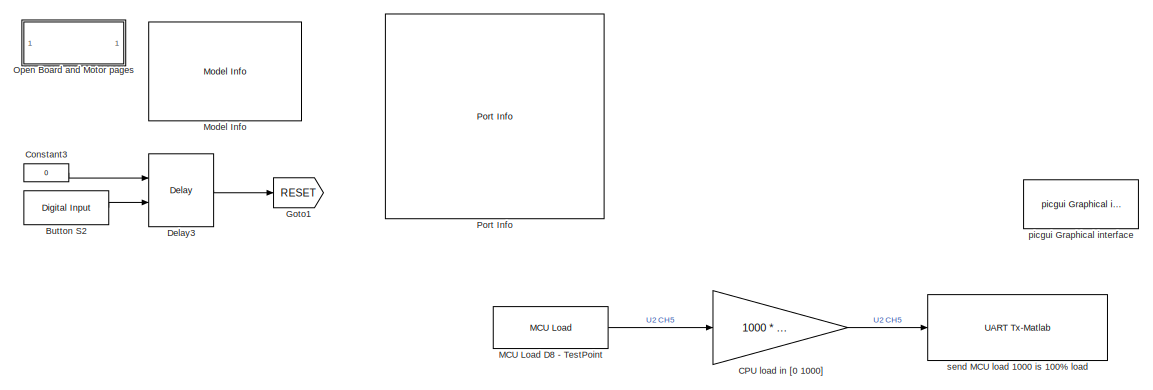
[diagram: root canvas - part 1/3, top right region]
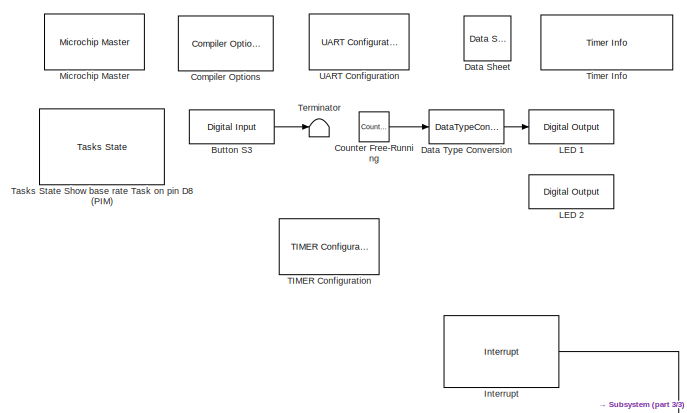
[diagram: root canvas - part 2/3, top left region]
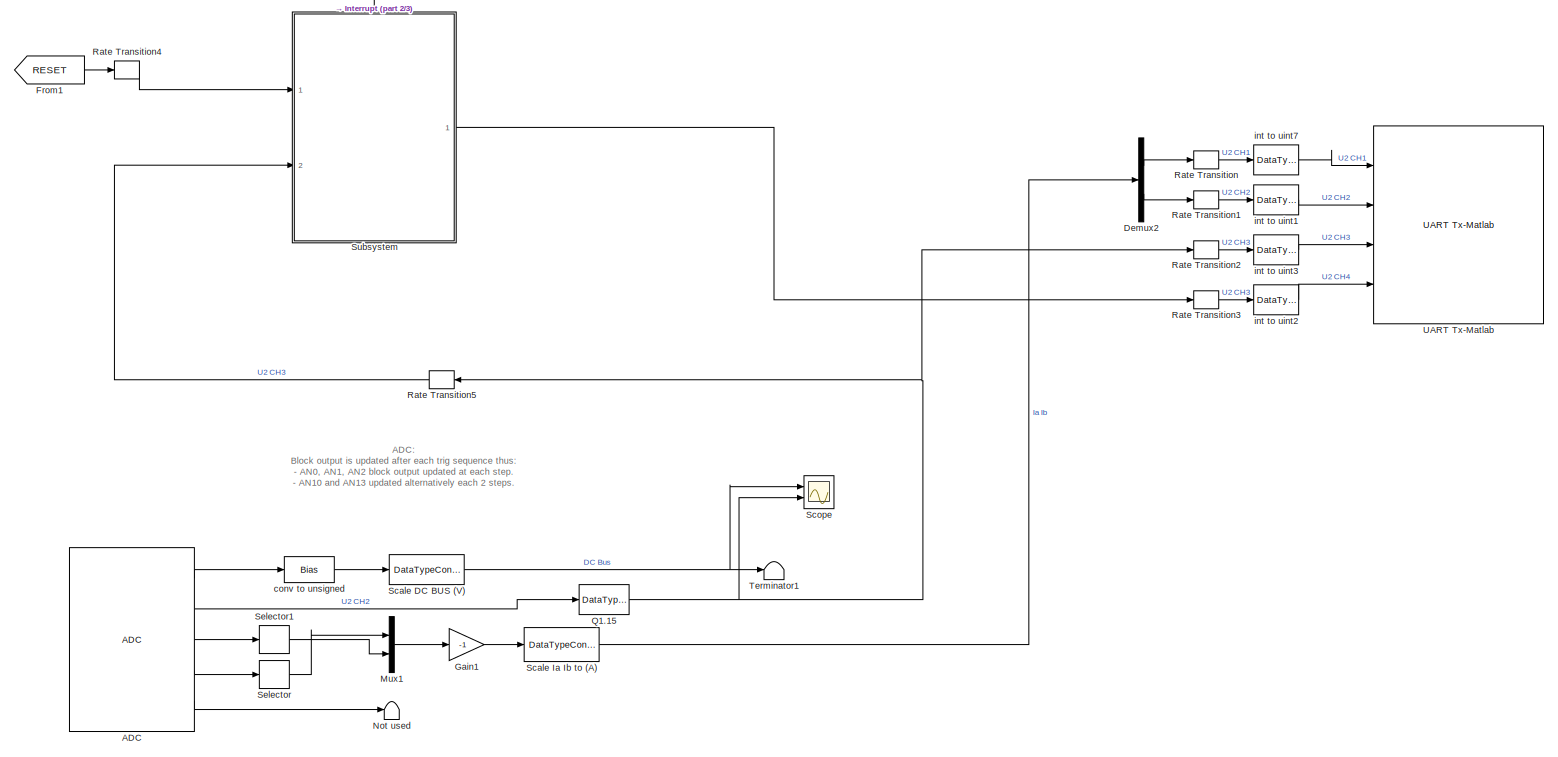
[diagram: root canvas - part 3/3, full width, bottom band]
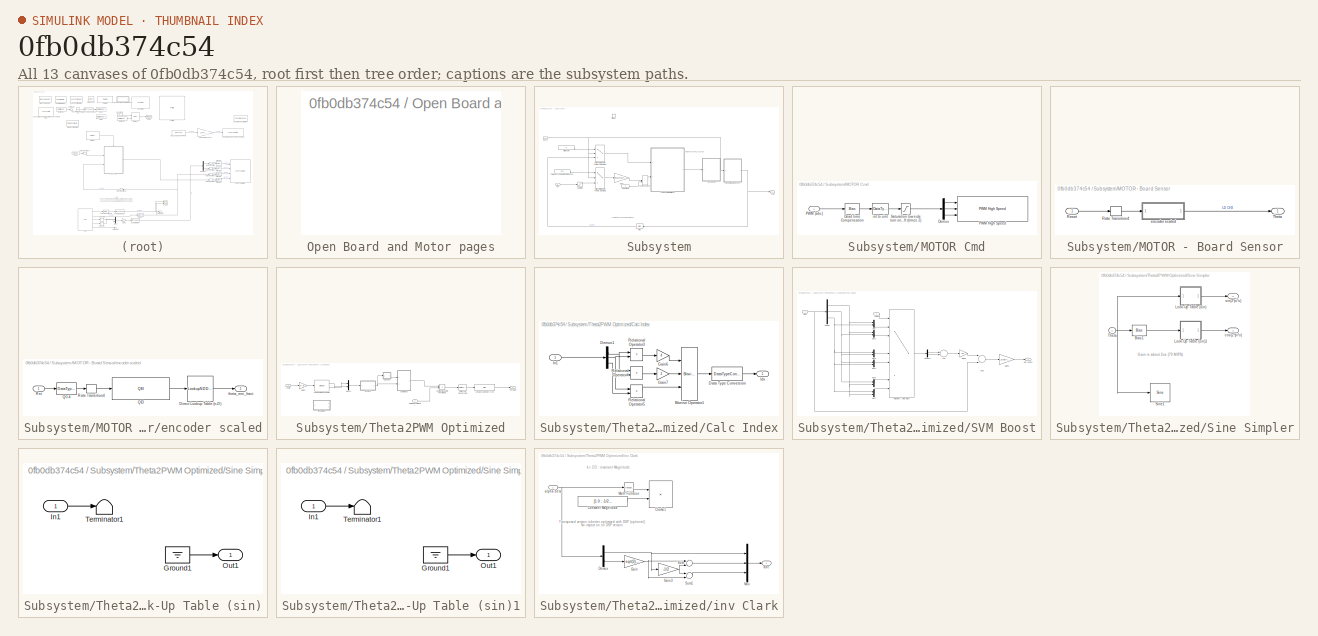
[diagram: thumbnail index - all 13 canvases of the model, root first then tree order]
MODEL slx_0fb0db374c54
KIND model
CONFIG AbsTol = auto
CONFIG EnableMultiTasking = on
CONFIG FixedStep = .01
CONFIG MaxStep = auto
CONFIG MinStep = auto
CONFIG RelTol = 1e-3
CONFIG SampleTimeConstraint = Unconstrained
CONFIG Solver = FixedStepDiscrete
CONFIG SolverName = FixedStepDiscrete
CONFIG StartTime = 0.0
CONFIG StopTime = inf
BLOCK [Reference] ADC  REF=MCHP_Blockset/Analog IO/ADC
  Ports = [0, 5]
  Priority = 5
  SourceBlock = MCHP_Blockset/Analog IO/ADC
  SourceProductName = MPLAB Device Blocks for Simulink
BLOCK [Reference] Button S2  REF=MCHP_Blockset/Digital IO/Digital Input
  Ports = [0, 1]
  SourceBlock = MCHP_Blockset/Digital IO/Digital Input
  SourceProductName = MPLAB Device Blocks for Simulink
  SourceType = Input driver for Digital Input Pins
BLOCK [Reference] Button S3  REF=MCHP_Blockset/Digital IO/Digital Input
  Ports = [0, 1]
  SourceBlock = MCHP_Blockset/Digital IO/Digital Input
  SourceProductName = MPLAB Device Blocks for Simulink
  SourceType = Input driver for Digital Input Pins
BLOCK [Gain] CPU load in [0 1000]
  Gain = 1000 * (914.3e-9 / .01 )
  OutDataTypeStr = uint16
  ParamDataTypeStr = Inherit: Inherit via internal rule
  SaturateOnIntegerOverflow = off
BLOCK [Reference] Compiler Options  REF=MCHP_Blockset/System Configuration/Compiler Options
  Ports = []
  Priority = 1
  SourceBlock = MCHP_Blockset/System Configuration/Compiler Options
  SourceProductName = MPLAB Device Blocks for Simulink
BLOCK [Constant] Constant3
  OutDataTypeStr = uint16
  SampleTime = -1
  Value = 0
BLOCK [Reference] Counter Free-Running  REF=simulink/Sources/Counter
Free-Running
  Ports = [0, 1]
  SourceBlock = simulink/Sources/Counter\nFree-Running
  SourceProductBaseCode = SL
  SourceProductName = Simulink
  SourceType = Counter Free-Running
BLOCK [Reference] Data Sheet  REF=MCHP_Blockset/System Info/Data Sheet
  AttributesFormatString = %<cpy_MCHP_Id>
  Ports = []
  SourceBlock = MCHP_Blockset/System Info/Data Sheet
  SourceProductName = MPLAB Device Blocks for Simulink
BLOCK [DataTypeConversion] Data Type Conversion
  OutDataTypeStr = boolean
  RndMeth = Floor
  SaturateOnIntegerOverflow = off
BLOCK [Delay] Delay3
  DelayLength = 1
  ExternalReset = Falling
  InitialCondition = 1
  InputPortMap = u0,r5
  Ports = [2, 1]
  SampleTime = .1
BLOCK [Demux] Demux2
  DisplayOption = bar
  Outputs = 2
  Ports = [1, 2]
BLOCK [From] From1
  GotoTag = RESET
  TagVisibility = global
BLOCK [Gain] Gain1
  Gain = -1
  ParamDataTypeStr = Inherit: Inherit via internal rule
BLOCK [Goto] Goto1
  GotoTag = RESET
  TagVisibility = global
BLOCK [Reference] Interrupt  REF=MCHP_Blockset/System Functions/Interrupt
  Ports = [0, 1]
  SourceBlock = MCHP_Blockset/System Functions/Interrupt
  SourceProductName = MPLAB Device Blocks for Simulink
  SourceType = Interruption (Call Simulink Subfunction)
BLOCK [Reference] LED 1  REF=MCHP_Blockset/Digital IO/Digital Output
  Ports = [1]
  SourceBlock = MCHP_Blockset/Digital IO/Digital Output
  SourceProductName = MPLAB Device Blocks for Simulink
BLOCK [Reference] LED 2  REF=MCHP_Blockset/Digital IO/Digital Output
  Commented = on
  Ports = [1]
  SourceBlock = MCHP_Blockset/Digital IO/Digital Output
  SourceProductName = MPLAB Device Blocks for Simulink
BLOCK [Reference] MCU Load D8 - TestPoint  REF=MCHP_Blockset/Profiling/MCU Load
  Ports = [0, 1]
  SourceBlock = MCHP_Blockset/Profiling/MCU Load
  SourceProductName = MPLAB Device Blocks for Simulink
  SourceType = MCU Load (Profile execution time)
BLOCK [Reference] Microchip Master  REF=MCHP_Blockset/System Configuration/Microchip Master
  Ports = []
  Priority = 1
  SourceBlock = MCHP_Blockset/System Configuration/Microchip Master
  SourceProductName = MPLAB Device Blocks for Simulink
BLOCK [Reference] Model Info  REF=simulink/Model-Wide
Utilities/Model Info
  Ports = []
  SourceBlock = simulink/Model-Wide\nUtilities/Model Info
  SourceProductBaseCode = SL
  SourceProductName = Simulink
  SourceType = CMBlock
BLOCK [Mux] Mux1
  DisplayOption = bar
  Inputs = 2
  Ports = [2, 1]
BLOCK [Terminator] Not used
BLOCK [SubSystem] Open Board and Motor pages
  OpenFcn = web('www.microchip.com/DevelopmentTools/ProductDetails.aspx?PartNO=DM330021-2','-browser');\npause(1);\nweb('http://www.microchipdirect.com/productsearch.aspx?keywords=AC300020','-browser');\npause(1);\nweb('www.microchipdirect.com/ProductSearch.aspx?keywords=AC300022','-browser');
  Ports = []
  RequestExecContextInheritance = off
BLOCK [Reference] Port Info  REF=MCHP_Blockset/System Info/Port Info
  Ports = []
  SourceBlock = MCHP_Blockset/System Info/Port Info
  SourceProductName = MPLAB Device Blocks for Simulink
BLOCK [DataTypeConversion] Q1.15
  ConvertRealWorld = Stored Integer (SI)
  OutDataTypeStr = fixdt(1,16,15)
  RndMeth = Floor
  SaturateOnIntegerOverflow = off
BLOCK [RateTransition] Rate Transition
BLOCK [RateTransition] Rate Transition1
BLOCK [RateTransition] Rate Transition2
BLOCK [RateTransition] Rate Transition3
  Deterministic = off
BLOCK [RateTransition] Rate Transition4
  Deterministic = off
BLOCK [RateTransition] Rate Transition5
  Deterministic = off
BLOCK [DataTypeConversion] Scale DC BUS  (V)
  ConvertRealWorld = Stored Integer (SI)
  OutDataTypeStr = fixdt(0,16, (3.3*16)/65535 ,0)
  RndMeth = Floor
  SaturateOnIntegerOverflow = off
BLOCK [DataTypeConversion] Scale Ia Ib to (A)
  ConvertRealWorld = Stored Integer (SI)
  OutDataTypeStr = fixdt(1,16, 1.65/32768 / (.005 * 75),0)
  RndMeth = Floor
  SaturateOnIntegerOverflow = off
BLOCK [Scope] Scope
  Floating = off
  NumInputPorts = 2
  Ports = [2]
  ScopeSpecificationString = Simulink.scopes.TimeScopeBlockCfg('CurrentConfiguration', extmgr.ConfigurationSet(extmgr.Configuration('Core','General UI',true),extmgr.Configuration('Core','Source UI',true),extmgr.Configuration('Sources','WiredSimulink',true),extmgr.Configuration('Visuals','Time Domain',true,'SerializedDisplays',{struct('MinYLimReal','-10','MaxYLimReal','10','YLabelReal','','MinYLimMag','0','MaxYLimMag','10','Le...<+1452ch>
BLOCK [Selector] Selector
  IndexOptions = Index vector (dialog)
  Indices = 2
  InputPortWidth = 2
  OutputSizes = 1
  Ports = [1, 1]
BLOCK [Selector] Selector1
  IndexOptions = Index vector (dialog)
  Indices = 2
  InputPortWidth = 2
  OutputSizes = 1
  Ports = [1, 1]
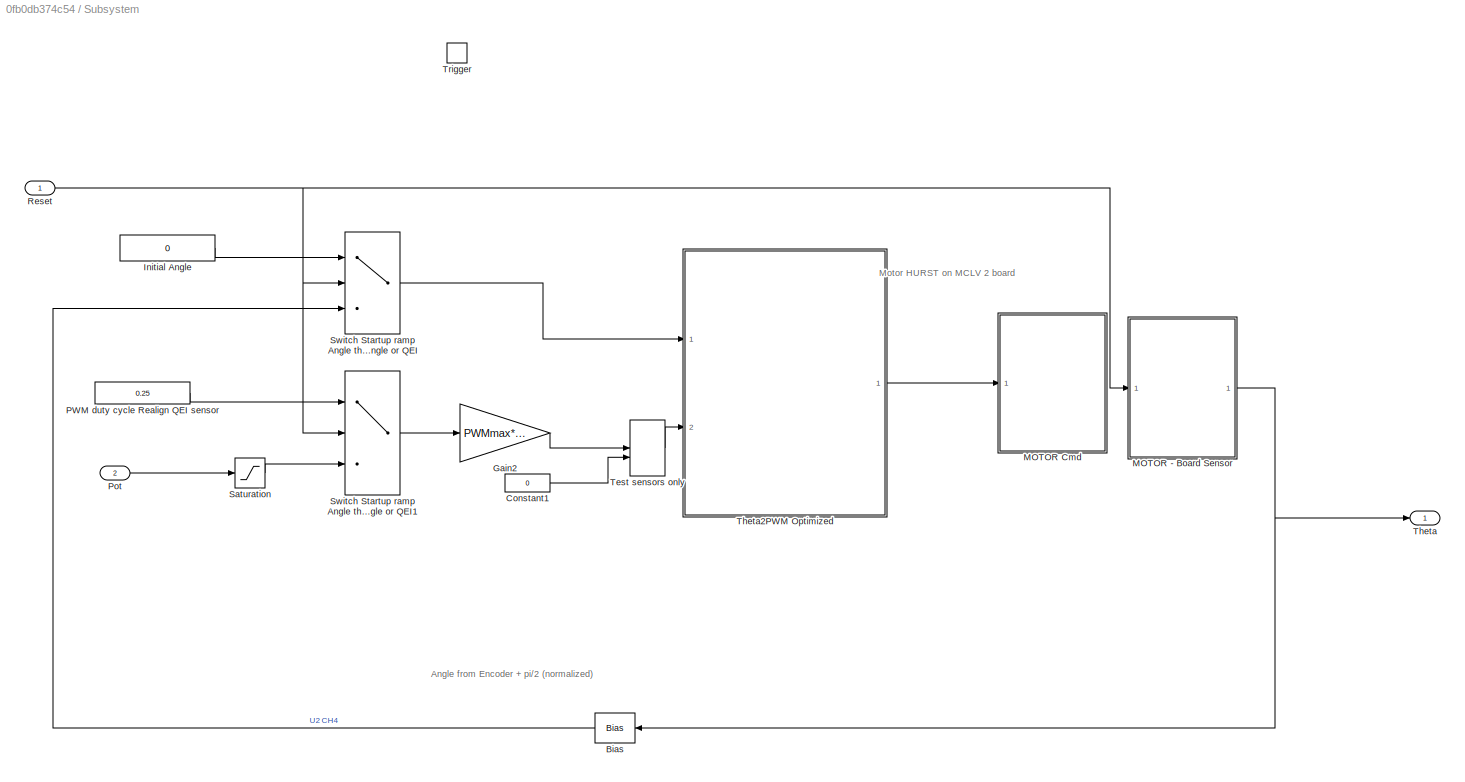
BLOCK [SubSystem] Subsystem
  Ports = [2, 1, 0, 1]
  RequestExecContextInheritance = off
BLOCK [Bias] Subsystem/Bias
  Bias = 0.25
  SaturateOnIntegerOverflow = off
BLOCK [Constant] Subsystem/Constant1
  OutDataTypeStr = Inherit: Inherit via back propagation
  SampleTime = -1
  Value = 0
BLOCK [Gain] Subsystem/Gain2
  Gain = PWMmax*0.5
  OutDataTypeStr = fixdt(1,16)
  OutMax = PWMmax*0.5
  OutMin = -PWMmax*0.5
  ParamDataTypeStr = Inherit: Inherit via internal rule
  SaturateOnIntegerOverflow = off
BLOCK [Constant] Subsystem/Initial Angle 
  OutDataTypeStr = Inherit: Inherit via back propagation
  Value = 0
BLOCK [SubSystem] Subsystem/MOTOR - Board Sensor
  Ports = [1, 1]
  RequestExecContextInheritance = off
BLOCK [RateTransition] Subsystem/MOTOR - Board Sensor/Rate Transition4
  InitialCondition = 1
BLOCK [Inport] Subsystem/MOTOR - Board Sensor/Reset
  IconDisplay = Port number
BLOCK [Outport] Subsystem/MOTOR - Board Sensor/Theta
  IconDisplay = Port number
BLOCK [SubSystem] Subsystem/MOTOR - Board Sensor/encoder scaled
  Ports = [1, 1]
  RequestExecContextInheritance = off
BLOCK [LookupNDDirect] Subsystem/MOTOR - Board Sensor/encoder scaled/Direct Lookup Table (n-D)
  LockScale = on
  NumberOfTableDimensions = 1
  Ports = [1, 1]
  Table = [0:199]*inv(200)
  TableDataTypeStr = fixdt(0,16,16)
BLOCK [DataTypeConversion] Subsystem/MOTOR - Board Sensor/encoder scaled/Q0.4
  RndMeth = Floor
  SaturateOnIntegerOverflow = off
BLOCK [Reference] Subsystem/MOTOR - Board Sensor/encoder scaled/QEI  REF=MCHP_Blockset/QEI/QEI
  Ports = [1, 1]
  SourceBlock = MCHP_Blockset/QEI/QEI
  SourceProductName = MPLAB Device Blocks for Simulink
  SourceType = Output Driver for Quadrature Encoder Interface (QEI) peripheral
  UserDataPersistent = on
BLOCK [RateTransition] Subsystem/MOTOR - Board Sensor/encoder scaled/Rate Transition4
  InitialCondition = 1
BLOCK [Inport] Subsystem/MOTOR - Board Sensor/encoder scaled/Rst
  IconDisplay = Port number
BLOCK [Outport] Subsystem/MOTOR - Board Sensor/encoder scaled/theta_enc_fract
  IconDisplay = Port number
BLOCK [SubSystem] Subsystem/MOTOR Cmd
  Ports = [1]
  RequestExecContextInheritance = off
BLOCK [Bias] Subsystem/MOTOR Cmd/Dead time Compensation
  Bias = round( (2e-6/5e-5) *PWMmax )
  SaturateOnIntegerOverflow = off
BLOCK [Demux] Subsystem/MOTOR Cmd/Demux
  DisplayOption = bar
  Outputs = 3
  Ports = [1, 3]
BLOCK [Inport] Subsystem/MOTOR Cmd/PWM (abc)
  IconDisplay = Port number
BLOCK [Reference] Subsystem/MOTOR Cmd/PWM High Speed  REF=MCHP_Blockset/PWM IO/PWM High Speed
  Ports = [3]
  SourceBlock = MCHP_Blockset/PWM IO/PWM High Speed
  SourceProductName = MPLAB Device Blocks for Simulink
  UserDataPersistent = on
BLOCK [Saturate] Subsystem/MOTOR Cmd/Saturation low side turn on errate workaround + errata for Phase shift (times 2)
  InputPortMap = u0
  LowerLimit = round( (2e-6/5e-5) *PWMmax )* 2
  Ports = [1, 1]
  UpperLimit = PWMmax
BLOCK [DataTypeConversion] Subsystem/MOTOR Cmd/int to uint
  ConvertRealWorld = Stored Integer (SI)
  OutDataTypeStr = uint16
  RndMeth = Floor
  SaturateOnIntegerOverflow = off
BLOCK [Constant] Subsystem/PWM duty cycle Realign QEI sensor
  OutDataTypeStr = Inherit: Inherit via back propagation
  Value = 0.25
BLOCK [Inport] Subsystem/Pot
  IconDisplay = Port number
  Port = 2
BLOCK [Inport] Subsystem/Reset
  IconDisplay = Port number
BLOCK [Saturate] Subsystem/Saturation
  InputPortMap = u0
  LowerLimit = -1
  Ports = [1, 1]
  UpperLimit = 1
BLOCK [Switch] Subsystem/Switch Startup ramp Angle then Estimated Angle or QEI
  Criteria = u2 ~= 0
  InputSameDT = off
  SaturateOnIntegerOverflow = off
  Threshold = 250
BLOCK [Switch] Subsystem/Switch Startup ramp Angle then Estimated Angle or QEI1
  Criteria = u2 ~= 0
  InputSameDT = off
  SaturateOnIntegerOverflow = off
  Threshold = 250
BLOCK [ManualSwitch] Subsystem/Test sensors only
BLOCK [Outport] Subsystem/Theta
  IconDisplay = Port number
BLOCK [SubSystem] Subsystem/Theta2PWM Optimized
  Ports = [2, 1]
  RequestExecContextInheritance = off
  VariantControl = Optimized
BLOCK [Bias] Subsystem/Theta2PWM Optimized/50% average duty-cycle
  Bias = ceil(PWMmax/2)
  SaturateOnIntegerOverflow = off
BLOCK [SubSystem] Subsystem/Theta2PWM Optimized/Calc Index
  Ports = [1, 1]
  RequestExecContextInheritance = off
BLOCK [Reference] Subsystem/Theta2PWM Optimized/Calc Index/Bitwise Operator1  REF=simulink/Logic and Bit
Operations/Bitwise
Operator
  Ports = [3, 1]
  SourceBlock = simulink/Logic and Bit\nOperations/Bitwise\nOperator
  SourceProductBaseCode = SL
  SourceProductName = Simulink
  SourceType = Bitwise Operator
BLOCK [DataTypeConversion] Subsystem/Theta2PWM Optimized/Calc Index/Data Type Conversion
  ConvertRealWorld = Stored Integer (SI)
  OutDataTypeStr = uint16
  RndMeth = Floor
  SaturateOnIntegerOverflow = off
BLOCK [Demux] Subsystem/Theta2PWM Optimized/Calc Index/Demux1
  DisplayOption = bar
  Outputs = 3
  Ports = [1, 3]
BLOCK [Gain] Subsystem/Theta2PWM Optimized/Calc Index/Gain6
  Gain = 4
  ParamDataTypeStr = Inherit: Inherit via internal rule
  SaturateOnIntegerOverflow = off
BLOCK [Gain] Subsystem/Theta2PWM Optimized/Calc Index/Gain7
  Gain = 2
  ParamDataTypeStr = Inherit: Inherit via internal rule
  SaturateOnIntegerOverflow = off
BLOCK [Outport] Subsystem/Theta2PWM Optimized/Calc Index/Idx
  IconDisplay = Port number
BLOCK [Inport] Subsystem/Theta2PWM Optimized/Calc Index/In1
  IconDisplay = Port number
BLOCK [RelationalOperator] Subsystem/Theta2PWM Optimized/Calc Index/Relational Operator3
  InputSameDT = off
  Operator = >
  OutDataTypeStr = fixdt(1,16)
  Ports = [2, 1]
BLOCK [RelationalOperator] Subsystem/Theta2PWM Optimized/Calc Index/Relational Operator4
  InputSameDT = off
  Operator = >
  OutDataTypeStr = fixdt(1,16)
  Ports = [2, 1]
BLOCK [RelationalOperator] Subsystem/Theta2PWM Optimized/Calc Index/Relational Operator5
  InputSameDT = off
  Operator = >
  OutDataTypeStr = fixdt(1,16)
  Ports = [2, 1]
BLOCK [DataTypeConversion] Subsystem/Theta2PWM Optimized/Data Type Conversion
  ConvertRealWorld = Stored Integer (SI)
  OutDataTypeStr = uint16
  RndMeth = Floor
  SaturateOnIntegerOverflow = off
BLOCK [Inport] Subsystem/Theta2PWM Optimized/Gain [0 PWMmax//2]
  IconDisplay = Port number
  OutMax = [PWMmax/2]
  OutMin = [-PWMmax/2]
  Port = 2
BLOCK [Gain] Subsystem/Theta2PWM Optimized/Gain2
  Gain = 2* pi
  OutDataTypeStr = fixdt(0,16,13)
  ParamDataTypeStr = Inherit: Inherit via internal rule
  RndMeth = Convergent
  SaturateOnIntegerOverflow = off
BLOCK [Mux] Subsystem/Theta2PWM Optimized/Mux24
  DisplayOption = bar
  Inputs = 2
  Ports = [2, 1]
BLOCK [Outport] Subsystem/Theta2PWM Optimized/PWM abc
  IconDisplay = Port number
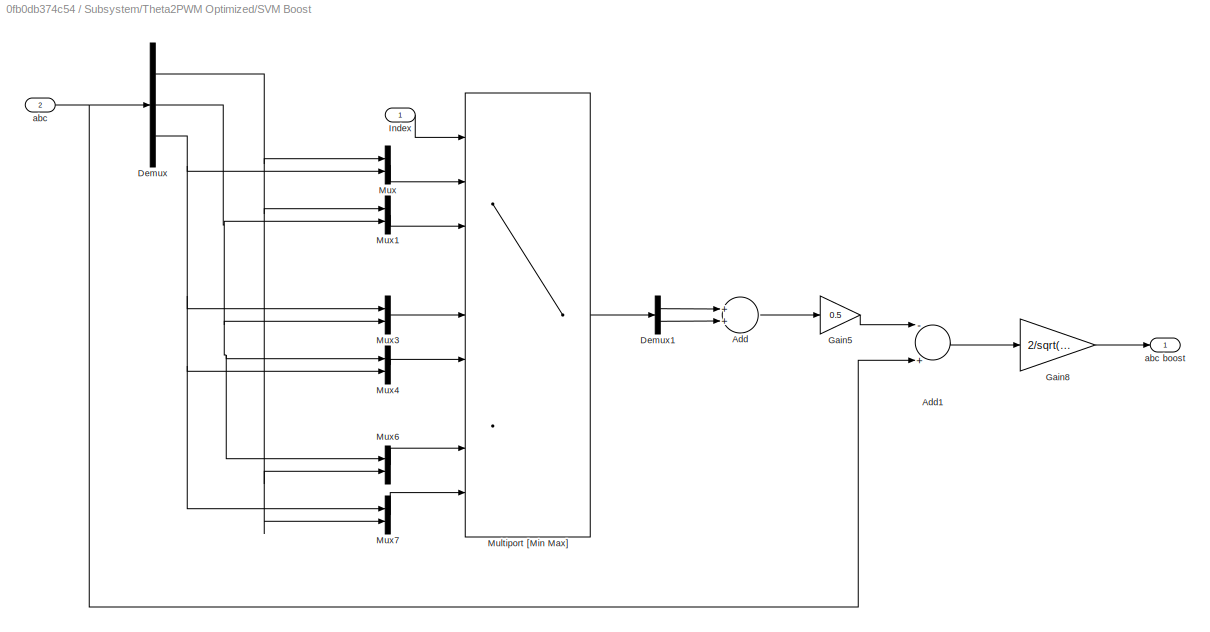
BLOCK [SubSystem] Subsystem/Theta2PWM Optimized/SVM Boost
  Ports = [2, 1]
  RequestExecContextInheritance = off
BLOCK [Sum] Subsystem/Theta2PWM Optimized/SVM Boost/Add
  AccumDataTypeStr = Inherit: Same as first input
  InputSameDT = off
  OutDataTypeStr = Inherit: Same as accumulator
  Ports = [2, 1]
  RndMeth = Simplest
  SaturateOnIntegerOverflow = off
BLOCK [Sum] Subsystem/Theta2PWM Optimized/SVM Boost/Add1
  AccumDataTypeStr = Inherit: Same as first input
  InputSameDT = off
  Inputs = -+
  OutDataTypeStr = Inherit: Same as accumulator
  Ports = [2, 1]
  RndMeth = Simplest
  SaturateOnIntegerOverflow = off
BLOCK [Demux] Subsystem/Theta2PWM Optimized/SVM Boost/Demux
  DisplayOption = bar
  Outputs = 3
  Ports = [1, 3]
BLOCK [Demux] Subsystem/Theta2PWM Optimized/SVM Boost/Demux1
  DisplayOption = bar
  Outputs = 2
  Ports = [1, 2]
BLOCK [Gain] Subsystem/Theta2PWM Optimized/SVM Boost/Gain5
  Gain = 0.5
  ParamDataTypeStr = Inherit: Inherit via internal rule
  RndMeth = Simplest
  SaturateOnIntegerOverflow = off
BLOCK [Gain] Subsystem/Theta2PWM Optimized/SVM Boost/Gain8
  Gain = 2/sqrt(3)
  ParamDataTypeStr = Inherit: Inherit via internal rule
  RndMeth = Simplest
  SaturateOnIntegerOverflow = off
BLOCK [Inport] Subsystem/Theta2PWM Optimized/SVM Boost/Index
  IconDisplay = Port number
BLOCK [MultiPortSwitch] Subsystem/Theta2PWM Optimized/SVM Boost/Multiport [Min Max]
  DataPortOrder = Zero-based contiguous
  DiagnosticForDefault = None
  InputSameDT = off
  Inputs = 8
  Ports = [9, 1]
  SaturateOnIntegerOverflow = off
  zeroidx = on
BLOCK [Mux] Subsystem/Theta2PWM Optimized/SVM Boost/Mux
  DisplayOption = bar
  Inputs = 2
  Ports = [2, 1]
BLOCK [Mux] Subsystem/Theta2PWM Optimized/SVM Boost/Mux1
  DisplayOption = bar
  Inputs = 2
  Ports = [2, 1]
BLOCK [Mux] Subsystem/Theta2PWM Optimized/SVM Boost/Mux3
  DisplayOption = bar
  Inputs = 2
  Ports = [2, 1]
BLOCK [Mux] Subsystem/Theta2PWM Optimized/SVM Boost/Mux4
  DisplayOption = bar
  Inputs = 2
  Ports = [2, 1]
BLOCK [Mux] Subsystem/Theta2PWM Optimized/SVM Boost/Mux6
  DisplayOption = bar
  Inputs = 2
  Ports = [2, 1]
BLOCK [Mux] Subsystem/Theta2PWM Optimized/SVM Boost/Mux7
  DisplayOption = bar
  Inputs = 2
  Ports = [2, 1]
BLOCK [Inport] Subsystem/Theta2PWM Optimized/SVM Boost/abc
  IconDisplay = Port number
  Port = 2
BLOCK [Outport] Subsystem/Theta2PWM Optimized/SVM Boost/abc boost
  IconDisplay = Port number
BLOCK [Product] Subsystem/Theta2PWM Optimized/Scaling Max gain is PWMmax//2
  InputSameDT = off
  Inputs = **
  OutDataTypeStr = int16
  Ports = [2, 1]
  RndMeth = Floor
  SaturateOnIntegerOverflow = off
BLOCK [SubSystem] Subsystem/Theta2PWM Optimized/Sine Simpler
  Commented = on
  Ports = [1, 2]
  RequestExecContextInheritance = off
BLOCK [Bias] Subsystem/Theta2PWM Optimized/Sine Simpler/Bias1
  Bias = 0.25
  SaturateOnIntegerOverflow = off
BLOCK [SubSystem] Subsystem/Theta2PWM Optimized/Sine Simpler/Look-Up Table (sin)
  Description = Replaced Block
  Ports = [1, 1]
  RequestExecContextInheritance = off
BLOCK [Ground] Subsystem/Theta2PWM Optimized/Sine Simpler/Look-Up Table (sin)/Ground1
BLOCK [Inport] Subsystem/Theta2PWM Optimized/Sine Simpler/Look-Up Table (sin)/In1
  IconDisplay = Port number
BLOCK [Outport] Subsystem/Theta2PWM Optimized/Sine Simpler/Look-Up Table (sin)/Out1
  IconDisplay = Port number
BLOCK [Terminator] Subsystem/Theta2PWM Optimized/Sine Simpler/Look-Up Table (sin)/Terminator1
BLOCK [SubSystem] Subsystem/Theta2PWM Optimized/Sine Simpler/Look-Up Table (sin)1
  Description = Replaced Block
  Ports = [1, 1]
  RequestExecContextInheritance = off
BLOCK [Ground] Subsystem/Theta2PWM Optimized/Sine Simpler/Look-Up Table (sin)1/Ground1
BLOCK [Inport] Subsystem/Theta2PWM Optimized/Sine Simpler/Look-Up Table (sin)1/In1
  IconDisplay = Port number
BLOCK [Outport] Subsystem/Theta2PWM Optimized/Sine Simpler/Look-Up Table (sin)1/Out1
  IconDisplay = Port number
BLOCK [Terminator] Subsystem/Theta2PWM Optimized/Sine Simpler/Look-Up Table (sin)1/Terminator1
BLOCK [Reference] Subsystem/Theta2PWM Optimized/Sine Simpler/Sine1  REF=simulink/Lookup
Tables/Sine
  Ports = [1, 2]
  SourceBlock = simulink/Lookup\nTables/Sine
  SourceProductBaseCode = SL
  SourceProductName = Simulink
  SourceType = Sine and Cosine
BLOCK [Inport] Subsystem/Theta2PWM Optimized/Sine Simpler/Theta
  IconDisplay = Port number
BLOCK [Outport] Subsystem/Theta2PWM Optimized/Sine Simpler/cos(2*pi*u)
  IconDisplay = Port number
BLOCK [Outport] Subsystem/Theta2PWM Optimized/Sine Simpler/sin(2*pi*u)
  IconDisplay = Port number
  Port = 2
BLOCK [Inport] Subsystem/Theta2PWM Optimized/Theta
  IconDisplay = Port number
  OutDataTypeStr = fixdt(0,16,16)
BLOCK [Trigonometry] Subsystem/Theta2PWM Optimized/Trigonometric Function
  ApproximationMethod = CORDIC
  NumberOfIterations = 15
  Operator = sincos
  Ports = [1, 2]
BLOCK [SubSystem] Subsystem/Theta2PWM Optimized/inv Clark
  Ports = [1, 1]
  RequestExecContextInheritance = off
BLOCK [Product] Subsystem/Theta2PWM Optimized/inv Clark/Clarke1
  InputSameDT = off
  Multiplication = Matrix(*)
  Ports = [2, 1]
  RndMeth = Convergent
  SaturateOnIntegerOverflow = off
BLOCK [Constant] Subsystem/Theta2PWM Optimized/inv Clark/Constant Magnitude
  OutDataTypeStr = Inherit: Inherit via back propagation
  SampleTime = -1
  Value = [1 0 ; -1/2 sqrt(3)/2 ;-1/2 -sqrt(3)/2]'
BLOCK [Demux] Subsystem/Theta2PWM Optimized/inv Clark/Demux
  DisplayOption = bar
  Outputs = 2
  Ports = [1, 2]
BLOCK [Gain] Subsystem/Theta2PWM Optimized/inv Clark/Gain
  Gain = sqrt(3)/2
  ParamDataTypeStr = Inherit: Inherit via internal rule
  SaturateOnIntegerOverflow = off
BLOCK [Gain] Subsystem/Theta2PWM Optimized/inv Clark/Gain3
  Gain = -1/2
  ParamDataTypeStr = Inherit: Inherit via internal rule
  RndMeth = Simplest
  SaturateOnIntegerOverflow = off
BLOCK [Math] Subsystem/Theta2PWM Optimized/inv Clark/Math Function
  Operator = transpose
  Ports = [1, 1]
BLOCK [Mux] Subsystem/Theta2PWM Optimized/inv Clark/Mux
  DisplayOption = bar
  Inputs = 3
  Ports = [3, 1]
BLOCK [Sum] Subsystem/Theta2PWM Optimized/inv Clark/Sum
  AccumDataTypeStr = Inherit: Same as first input
  InputSameDT = off
  Ports = [2, 1]
  RndMeth = Simplest
  SaturateOnIntegerOverflow = off
BLOCK [Sum] Subsystem/Theta2PWM Optimized/inv Clark/Sum1
  AccumDataTypeStr = Inherit: Same as first input
  InputSameDT = off
  Inputs = +-
  Ports = [2, 1]
  RndMeth = Simplest
  SaturateOnIntegerOverflow = off
BLOCK [Outport] Subsystem/Theta2PWM Optimized/inv Clark/abc
  IconDisplay = Port number
BLOCK [Inport] Subsystem/Theta2PWM Optimized/inv Clark/alpha beta
  IconDisplay = Port number
BLOCK [TriggerPort] Subsystem/Trigger
  PortDimensions = 1
  Ports = []
  StatesWhenEnabling = held
  TriggerType = function-call
  VariantControl = Variant
BLOCK [Reference] TIMER Configuration  REF=MCHP_Blockset/Timers/TIMER Configuration
  Ports = []
  SourceBlock = MCHP_Blockset/Timers/TIMER Configuration
  SourceProductName = MPLAB Device Blocks for Simulink
  SourceType = Timer Configuration
BLOCK [Reference] Tasks State Show base rate Task on pin D8 (PIM)  REF=MCHP_Blockset/Profiling/Tasks State
  Ports = []
  SourceBlock = MCHP_Blockset/Profiling/Tasks State
  SourceProductName = MPLAB Device Blocks for Simulink
  SourceType = MCU Over-Load (Profile execution time)
BLOCK [Terminator] Terminator
BLOCK [Terminator] Terminator1
BLOCK [Reference] Timer Info  REF=MCHP_Blockset/System Info/Timer Info
  Ports = []
  SourceBlock = MCHP_Blockset/System Info/Timer Info
  SourceProductName = MPLAB Device Blocks for Simulink
BLOCK [Reference] UART Configuration  REF=MCHP_Blockset/BUS UART/UART Configuration
  Ports = []
  SourceBlock = MCHP_Blockset/BUS UART/UART Configuration
  SourceProductName = MPLAB Device Blocks for Simulink
  SourceType = Configuration for UART peripheral
BLOCK [Reference] UART Tx-Matlab  REF=MCHP_Blockset/BUS UART/UART Tx-Matlab
  Commented = on
  Ports = [4]
  SourceBlock = MCHP_Blockset/BUS UART/UART Tx-Matlab
  SourceProductName = MPLAB Device Blocks for Simulink
  SourceType = Higl Level UART protocol
BLOCK [Bias] conv to unsigned
  Bias = 32768
  SaturateOnIntegerOverflow = off
BLOCK [DataTypeConversion] int to uint1
  ConvertRealWorld = Stored Integer (SI)
  OutDataTypeStr = int16
  RndMeth = Floor
  SaturateOnIntegerOverflow = off
BLOCK [DataTypeConversion] int to uint2
  ConvertRealWorld = Stored Integer (SI)
  OutDataTypeStr = int16
  RndMeth = Floor
  SaturateOnIntegerOverflow = off
BLOCK [DataTypeConversion] int to uint3
  ConvertRealWorld = Stored Integer (SI)
  OutDataTypeStr = int16
  RndMeth = Floor
  SaturateOnIntegerOverflow = off
BLOCK [DataTypeConversion] int to uint7
  ConvertRealWorld = Stored Integer (SI)
  OutDataTypeStr = int16
  RndMeth = Floor
  SaturateOnIntegerOverflow = off
BLOCK [Reference] picgui Graphical interface  REF=MCHP_Blockset/BUS UART/picgui
Graphical interface
  Ports = []
  SourceBlock = MCHP_Blockset/BUS UART/picgui\nGraphical interface
  SourceProductName = MPLAB Device Blocks for Simulink
BLOCK [Reference] send MCU load 1000 is 100% load  REF=MCHP_Blockset/BUS UART/UART Tx-Matlab
  Commented = on
  Ports = [1]
  SourceBlock = MCHP_Blockset/BUS UART/UART Tx-Matlab
  SourceProductName = MPLAB Device Blocks for Simulink
  SourceType = Higl Level UART protocol
ANNOTATION (root): ADC: Block output is updated after each trig sequence thus: - AN0, AN1, AN2 block output updated at each step. - AN10 and AN13 updated alternatively each 2 steps.
ANNOTATION Subsystem: Angle from Encoder + pi/2 (normalized)
ANNOTATION Subsystem: Motor HURST on MCLV 2 board
ANNOTATION Subsystem/Theta2PWM Optimized/Sine Simpler: Gain is about 2us (70 MIPS)
ANNOTATION Subsystem/Theta2PWM Optimized/inv Clark: Transposed version is better optimized with DSP (optional) No impact on no DSP version
ANNOTATION Subsystem/Theta2PWM Optimized/inv Clark: k = 2/3 : invariant Magnitude
LINE ADC:1 -> conv to unsigned:1
LINE ADC:2 -> Q1.15:1
LINE ADC:3 -> Selector1:1
LINE ADC:4 -> Selector:1
LINE ADC:5 -> Not used:1
LINE Button S2:1 -> Delay3:2
LINE Button S3:1 -> Terminator:1
LINE CPU load in [0 1000]:1 -> send MCU load 1000 is 100% load:1
LINE Constant3:1 -> Delay3:1
LINE Counter Free-Running:1 -> Data Type Conversion:1
LINE Data Type Conversion:1 -> LED 1:1
LINE Delay3:1 -> Goto1:1
LINE Demux2:1 -> Rate Transition:1
LINE Demux2:2 -> Rate Transition1:1
LINE From1:1 -> Rate Transition4:1
LINE Gain1:1 -> Scale Ia Ib to (A):1
LINE Interrupt:1 -> Subsystem:trigger
LINE MCU Load D8 - TestPoint:1 -> CPU load in [0 1000]:1
LINE Mux1:1 -> Gain1:1
NET Q1.15:1 -> Rate Transition2:1, Rate Transition5:1, Scope:2
LINE Rate Transition1:1 -> int to uint1:1
LINE Rate Transition2:1 -> int to uint3:1
LINE Rate Transition3:1 -> int to uint2:1
LINE Rate Transition4:1 -> Subsystem:1
LINE Rate Transition5:1 -> Subsystem:2
LINE Rate Transition:1 -> int to uint7:1
NET Scale DC BUS  (V):1 -> Scope:1, Terminator1:1
LINE Scale Ia Ib to (A):1 -> Demux2:1
LINE Selector1:1 -> Mux1:2
LINE Selector:1 -> Mux1:1
LINE Subsystem/Bias:1 -> Subsystem/Switch Startup ramp Angle then Estimated Angle or QEI:3
LINE Subsystem/Constant1:1 -> Subsystem/Test sensors only:2
LINE Subsystem/Gain2:1 -> Subsystem/Test sensors only:1
LINE Subsystem/Initial Angle :1 -> Subsystem/Switch Startup ramp Angle then Estimated Angle or QEI:1
LINE Subsystem/MOTOR - Board Sensor/Rate Transition4:1 -> Subsystem/MOTOR - Board Sensor/encoder scaled:1
LINE Subsystem/MOTOR - Board Sensor/Reset:1 -> Subsystem/MOTOR - Board Sensor/Rate Transition4:1
LINE Subsystem/MOTOR - Board Sensor/encoder scaled/Direct Lookup Table (n-D):1 -> Subsystem/MOTOR - Board Sensor/encoder scaled/theta_enc_fract:1
LINE Subsystem/MOTOR - Board Sensor/encoder scaled/Q0.4:1 -> Subsystem/MOTOR - Board Sensor/encoder scaled/Rate Transition4:1
LINE Subsystem/MOTOR - Board Sensor/encoder scaled/QEI:1 -> Subsystem/MOTOR - Board Sensor/encoder scaled/Direct Lookup Table (n-D):1
LINE Subsystem/MOTOR - Board Sensor/encoder scaled/Rate Transition4:1 -> Subsystem/MOTOR - Board Sensor/encoder scaled/QEI:1
LINE Subsystem/MOTOR - Board Sensor/encoder scaled/Rst:1 -> Subsystem/MOTOR - Board Sensor/encoder scaled/Q0.4:1
LINE Subsystem/MOTOR - Board Sensor/encoder scaled:1 -> Subsystem/MOTOR - Board Sensor/Theta:1
NET Subsystem/MOTOR - Board Sensor:1 -> Subsystem/Bias:1, Subsystem/Theta:1
LINE Subsystem/MOTOR Cmd/Dead time Compensation:1 -> Subsystem/MOTOR Cmd/int to uint:1
LINE Subsystem/MOTOR Cmd/Demux:1 -> Subsystem/MOTOR Cmd/PWM High Speed:1
LINE Subsystem/MOTOR Cmd/Demux:2 -> Subsystem/MOTOR Cmd/PWM High Speed:2
LINE Subsystem/MOTOR Cmd/Demux:3 -> Subsystem/MOTOR Cmd/PWM High Speed:3
LINE Subsystem/MOTOR Cmd/PWM (abc):1 -> Subsystem/MOTOR Cmd/Dead time Compensation:1
LINE Subsystem/MOTOR Cmd/Saturation low side turn on errate workaround + errata for Phase shift (times 2):1 -> Subsystem/MOTOR Cmd/Demux:1
LINE Subsystem/MOTOR Cmd/int to uint:1 -> Subsystem/MOTOR Cmd/Saturation low side turn on errate workaround + errata for Phase shift (times 2):1
LINE Subsystem/PWM duty cycle Realign QEI sensor:1 -> Subsystem/Switch Startup ramp Angle then Estimated Angle or QEI1:1
LINE Subsystem/Pot:1 -> Subsystem/Saturation:1
NET Subsystem/Reset:1 -> Subsystem/MOTOR - Board Sensor:1, Subsystem/Switch Startup ramp Angle then Estimated Angle or QEI1:2, Subsystem/Switch Startup ramp Angle then Estimated Angle or QEI:2
LINE Subsystem/Saturation:1 -> Subsystem/Switch Startup ramp Angle then Estimated Angle or QEI1:3
LINE Subsystem/Switch Startup ramp Angle then Estimated Angle or QEI1:1 -> Subsystem/Gain2:1
LINE Subsystem/Switch Startup ramp Angle then Estimated Angle or QEI:1 -> Subsystem/Theta2PWM Optimized:1
LINE Subsystem/Test sensors only:1 -> Subsystem/Theta2PWM Optimized:2
LINE Subsystem/Theta2PWM Optimized/50% average duty-cycle:1 -> Subsystem/Theta2PWM Optimized/PWM abc:1
LINE Subsystem/Theta2PWM Optimized/Calc Index/Bitwise Operator1:1 -> Subsystem/Theta2PWM Optimized/Calc Index/Data Type Conversion:1
LINE Subsystem/Theta2PWM Optimized/Calc Index/Data Type Conversion:1 -> Subsystem/Theta2PWM Optimized/Calc Index/Idx:1
NET Subsystem/Theta2PWM Optimized/Calc Index/Demux1:1 -> Subsystem/Theta2PWM Optimized/Calc Index/Relational Operator3:1, Subsystem/Theta2PWM Optimized/Calc Index/Relational Operator4:1
NET Subsystem/Theta2PWM Optimized/Calc Index/Demux1:2 -> Subsystem/Theta2PWM Optimized/Calc Index/Relational Operator3:2, Subsystem/Theta2PWM Optimized/Calc Index/Relational Operator5:1
NET Subsystem/Theta2PWM Optimized/Calc Index/Demux1:3 -> Subsystem/Theta2PWM Optimized/Calc Index/Relational Operator4:2, Subsystem/Theta2PWM Optimized/Calc Index/Relational Operator5:2
LINE Subsystem/Theta2PWM Optimized/Calc Index/Gain6:1 -> Subsystem/Theta2PWM Optimized/Calc Index/Bitwise Operator1:1
LINE Subsystem/Theta2PWM Optimized/Calc Index/Gain7:1 -> Subsystem/Theta2PWM Optimized/Calc Index/Bitwise Operator1:2
LINE Subsystem/Theta2PWM Optimized/Calc Index/In1:1 -> Subsystem/Theta2PWM Optimized/Calc Index/Demux1:1
LINE Subsystem/Theta2PWM Optimized/Calc Index/Relational Operator3:1 -> Subsystem/Theta2PWM Optimized/Calc Index/Gain6:1
LINE Subsystem/Theta2PWM Optimized/Calc Index/Relational Operator4:1 -> Subsystem/Theta2PWM Optimized/Calc Index/Gain7:1
LINE Subsystem/Theta2PWM Optimized/Calc Index/Relational Operator5:1 -> Subsystem/Theta2PWM Optimized/Calc Index/Bitwise Operator1:3
LINE Subsystem/Theta2PWM Optimized/Calc Index:1 -> Subsystem/Theta2PWM Optimized/SVM Boost:1
LINE Subsystem/Theta2PWM Optimized/Data Type Conversion:1 -> Subsystem/Theta2PWM Optimized/50% average duty-cycle:1
LINE Subsystem/Theta2PWM Optimized/Gain [0 PWMmax//2]:1 -> Subsystem/Theta2PWM Optimized/Scaling Max gain is PWMmax//2:2
LINE Subsystem/Theta2PWM Optimized/Gain2:1 -> Subsystem/Theta2PWM Optimized/Trigonometric Function:1
LINE Subsystem/Theta2PWM Optimized/Mux24:1 -> Subsystem/Theta2PWM Optimized/inv Clark:1
LINE Subsystem/Theta2PWM Optimized/SVM Boost/Add1:1 -> Subsystem/Theta2PWM Optimized/SVM Boost/Gain8:1
LINE Subsystem/Theta2PWM Optimized/SVM Boost/Add:1 -> Subsystem/Theta2PWM Optimized/SVM Boost/Gain5:1
LINE Subsystem/Theta2PWM Optimized/SVM Boost/Demux1:1 -> Subsystem/Theta2PWM Optimized/SVM Boost/Add:1
LINE Subsystem/Theta2PWM Optimized/SVM Boost/Demux1:2 -> Subsystem/Theta2PWM Optimized/SVM Boost/Add:2
NET Subsystem/Theta2PWM Optimized/SVM Boost/Demux:1 -> Subsystem/Theta2PWM Optimized/SVM Boost/Mux1:1, Subsystem/Theta2PWM Optimized/SVM Boost/Mux6:2, Subsystem/Theta2PWM Optimized/SVM Boost/Mux7:2, Subsystem/Theta2PWM Optimized/SVM Boost/Mux:1
NET Subsystem/Theta2PWM Optimized/SVM Boost/Demux:2 -> Subsystem/Theta2PWM Optimized/SVM Boost/Mux1:2, Subsystem/Theta2PWM Optimized/SVM Boost/Mux3:2, Subsystem/Theta2PWM Optimized/SVM Boost/Mux4:1, Subsystem/Theta2PWM Optimized/SVM Boost/Mux6:1
NET Subsystem/Theta2PWM Optimized/SVM Boost/Demux:3 -> Subsystem/Theta2PWM Optimized/SVM Boost/Mux3:1, Subsystem/Theta2PWM Optimized/SVM Boost/Mux4:2, Subsystem/Theta2PWM Optimized/SVM Boost/Mux7:1, Subsystem/Theta2PWM Optimized/SVM Boost/Mux:2
LINE Subsystem/Theta2PWM Optimized/SVM Boost/Gain5:1 -> Subsystem/Theta2PWM Optimized/SVM Boost/Add1:1
LINE Subsystem/Theta2PWM Optimized/SVM Boost/Gain8:1 -> Subsystem/Theta2PWM Optimized/SVM Boost/abc boost:1
LINE Subsystem/Theta2PWM Optimized/SVM Boost/Index:1 -> Subsystem/Theta2PWM Optimized/SVM Boost/Multiport [Min Max]:1
LINE Subsystem/Theta2PWM Optimized/SVM Boost/Multiport [Min Max]:1 -> Subsystem/Theta2PWM Optimized/SVM Boost/Demux1:1
LINE Subsystem/Theta2PWM Optimized/SVM Boost/Mux1:1 -> Subsystem/Theta2PWM Optimized/SVM Boost/Multiport [Min Max]:3
LINE Subsystem/Theta2PWM Optimized/SVM Boost/Mux3:1 -> Subsystem/Theta2PWM Optimized/SVM Boost/Multiport [Min Max]:5
LINE Subsystem/Theta2PWM Optimized/SVM Boost/Mux4:1 -> Subsystem/Theta2PWM Optimized/SVM Boost/Multiport [Min Max]:6
LINE Subsystem/Theta2PWM Optimized/SVM Boost/Mux6:1 -> Subsystem/Theta2PWM Optimized/SVM Boost/Multiport [Min Max]:8
LINE Subsystem/Theta2PWM Optimized/SVM Boost/Mux7:1 -> Subsystem/Theta2PWM Optimized/SVM Boost/Multiport [Min Max]:9
LINE Subsystem/Theta2PWM Optimized/SVM Boost/Mux:1 -> Subsystem/Theta2PWM Optimized/SVM Boost/Multiport [Min Max]:2
NET Subsystem/Theta2PWM Optimized/SVM Boost/abc:1 -> Subsystem/Theta2PWM Optimized/SVM Boost/Add1:2, Subsystem/Theta2PWM Optimized/SVM Boost/Demux:1
LINE Subsystem/Theta2PWM Optimized/SVM Boost:1 -> Subsystem/Theta2PWM Optimized/Scaling Max gain is PWMmax//2:1
LINE Subsystem/Theta2PWM Optimized/Scaling Max gain is PWMmax//2:1 -> Subsystem/Theta2PWM Optimized/Data Type Conversion:1
LINE Subsystem/Theta2PWM Optimized/Sine Simpler/Bias1:1 -> Subsystem/Theta2PWM Optimized/Sine Simpler/Look-Up Table (sin)1:1
LINE Subsystem/Theta2PWM Optimized/Sine Simpler/Look-Up Table (sin)/Ground1:1 -> Subsystem/Theta2PWM Optimized/Sine Simpler/Look-Up Table (sin)/Out1:1
LINE Subsystem/Theta2PWM Optimized/Sine Simpler/Look-Up Table (sin)/In1:1 -> Subsystem/Theta2PWM Optimized/Sine Simpler/Look-Up Table (sin)/Terminator1:1
LINE Subsystem/Theta2PWM Optimized/Sine Simpler/Look-Up Table (sin)1/Ground1:1 -> Subsystem/Theta2PWM Optimized/Sine Simpler/Look-Up Table (sin)1/Out1:1
LINE Subsystem/Theta2PWM Optimized/Sine Simpler/Look-Up Table (sin)1/In1:1 -> Subsystem/Theta2PWM Optimized/Sine Simpler/Look-Up Table (sin)1/Terminator1:1
LINE Subsystem/Theta2PWM Optimized/Sine Simpler/Look-Up Table (sin)1:1 -> Subsystem/Theta2PWM Optimized/Sine Simpler/cos(2*pi*u):1
LINE Subsystem/Theta2PWM Optimized/Sine Simpler/Look-Up Table (sin):1 -> Subsystem/Theta2PWM Optimized/Sine Simpler/sin(2*pi*u):1
NET Subsystem/Theta2PWM Optimized/Sine Simpler/Theta:1 -> Subsystem/Theta2PWM Optimized/Sine Simpler/Bias1:1, Subsystem/Theta2PWM Optimized/Sine Simpler/Look-Up Table (sin):1, Subsystem/Theta2PWM Optimized/Sine Simpler/Sine1:1
LINE Subsystem/Theta2PWM Optimized/Theta:1 -> Subsystem/Theta2PWM Optimized/Gain2:1
LINE Subsystem/Theta2PWM Optimized/Trigonometric Function:1 -> Subsystem/Theta2PWM Optimized/Mux24:2
LINE Subsystem/Theta2PWM Optimized/Trigonometric Function:2 -> Subsystem/Theta2PWM Optimized/Mux24:1
LINE Subsystem/Theta2PWM Optimized/inv Clark/Constant Magnitude:1 -> Subsystem/Theta2PWM Optimized/inv Clark/Clarke1:2
NET Subsystem/Theta2PWM Optimized/inv Clark/Demux:1 -> Subsystem/Theta2PWM Optimized/inv Clark/Gain3:1, Subsystem/Theta2PWM Optimized/inv Clark/Mux:1
LINE Subsystem/Theta2PWM Optimized/inv Clark/Demux:2 -> Subsystem/Theta2PWM Optimized/inv Clark/Gain:1
NET Subsystem/Theta2PWM Optimized/inv Clark/Gain3:1 -> Subsystem/Theta2PWM Optimized/inv Clark/Sum1:1, Subsystem/Theta2PWM Optimized/inv Clark/Sum:2
NET Subsystem/Theta2PWM Optimized/inv Clark/Gain:1 -> Subsystem/Theta2PWM Optimized/inv Clark/Sum1:2, Subsystem/Theta2PWM Optimized/inv Clark/Sum:1
LINE Subsystem/Theta2PWM Optimized/inv Clark/Math Function:1 -> Subsystem/Theta2PWM Optimized/inv Clark/Clarke1:1
LINE Subsystem/Theta2PWM Optimized/inv Clark/Mux:1 -> Subsystem/Theta2PWM Optimized/inv Clark/abc:1
LINE Subsystem/Theta2PWM Optimized/inv Clark/Sum1:1 -> Subsystem/Theta2PWM Optimized/inv Clark/Mux:3
LINE Subsystem/Theta2PWM Optimized/inv Clark/Sum:1 -> Subsystem/Theta2PWM Optimized/inv Clark/Mux:2
NET Subsystem/Theta2PWM Optimized/inv Clark/alpha beta:1 -> Subsystem/Theta2PWM Optimized/inv Clark/Demux:1, Subsystem/Theta2PWM Optimized/inv Clark/Math Function:1
NET Subsystem/Theta2PWM Optimized/inv Clark:1 -> Subsystem/Theta2PWM Optimized/Calc Index:1, Subsystem/Theta2PWM Optimized/SVM Boost:2
LINE Subsystem/Theta2PWM Optimized:1 -> Subsystem/MOTOR Cmd:1
LINE Subsystem:1 -> Rate Transition3:1
LINE conv to unsigned:1 -> Scale DC BUS  (V):1
LINE int to uint1:1 -> UART Tx-Matlab:2
LINE int to uint2:1 -> UART Tx-Matlab:4
LINE int to uint3:1 -> UART Tx-Matlab:3
LINE int to uint7:1 -> UART Tx-Matlab:1
note: NET lines group one-source signal fan-out (src -> all destinations, sorted); 1:1 wires keep LINE
